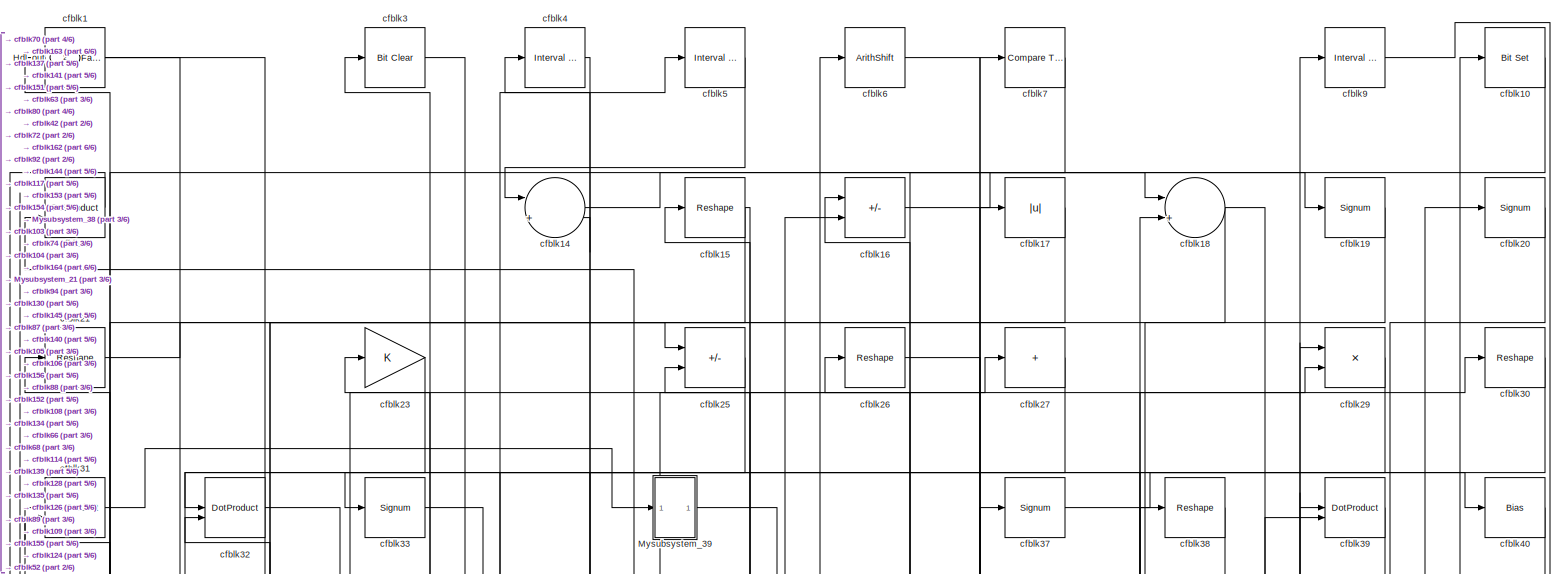
[diagram: root canvas - part 1/6, full width, top band]
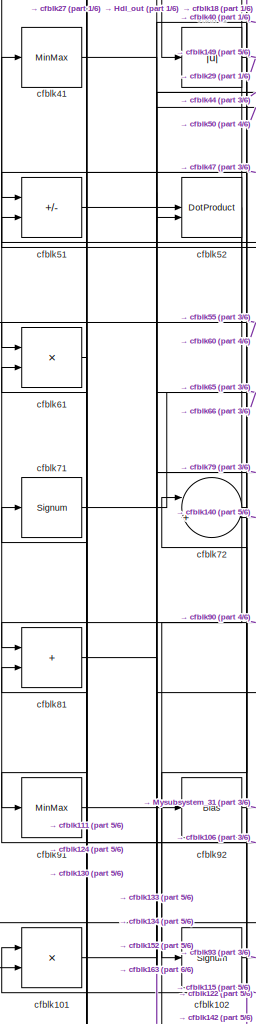
[diagram: root canvas - part 2/6, middle left region]
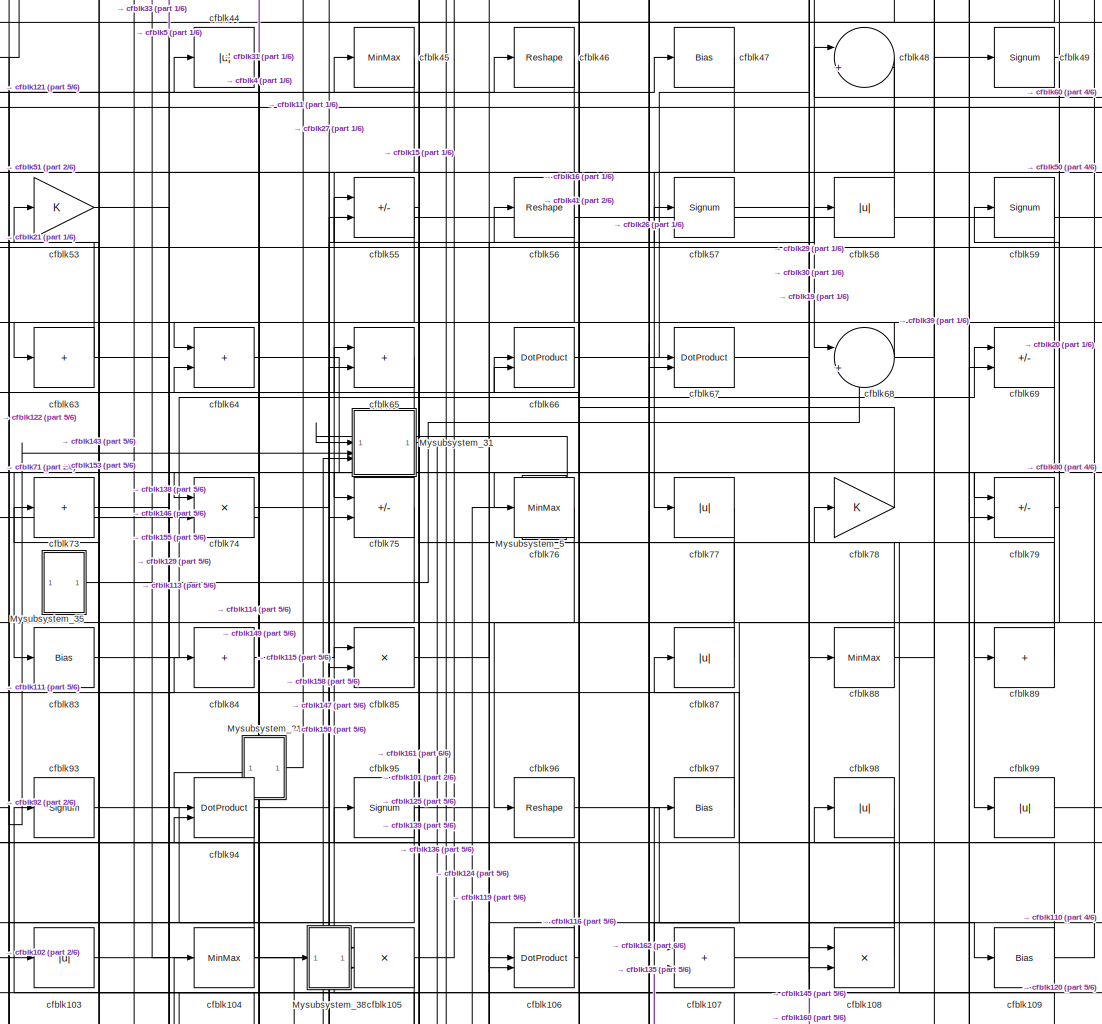
[diagram: root canvas - part 3/6, central region]
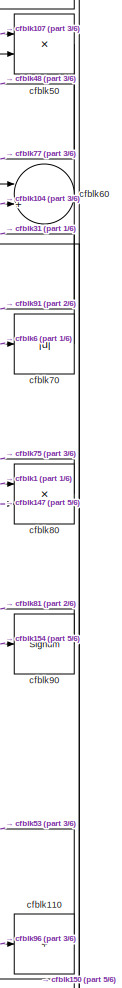
[diagram: root canvas - part 4/6, middle right region]
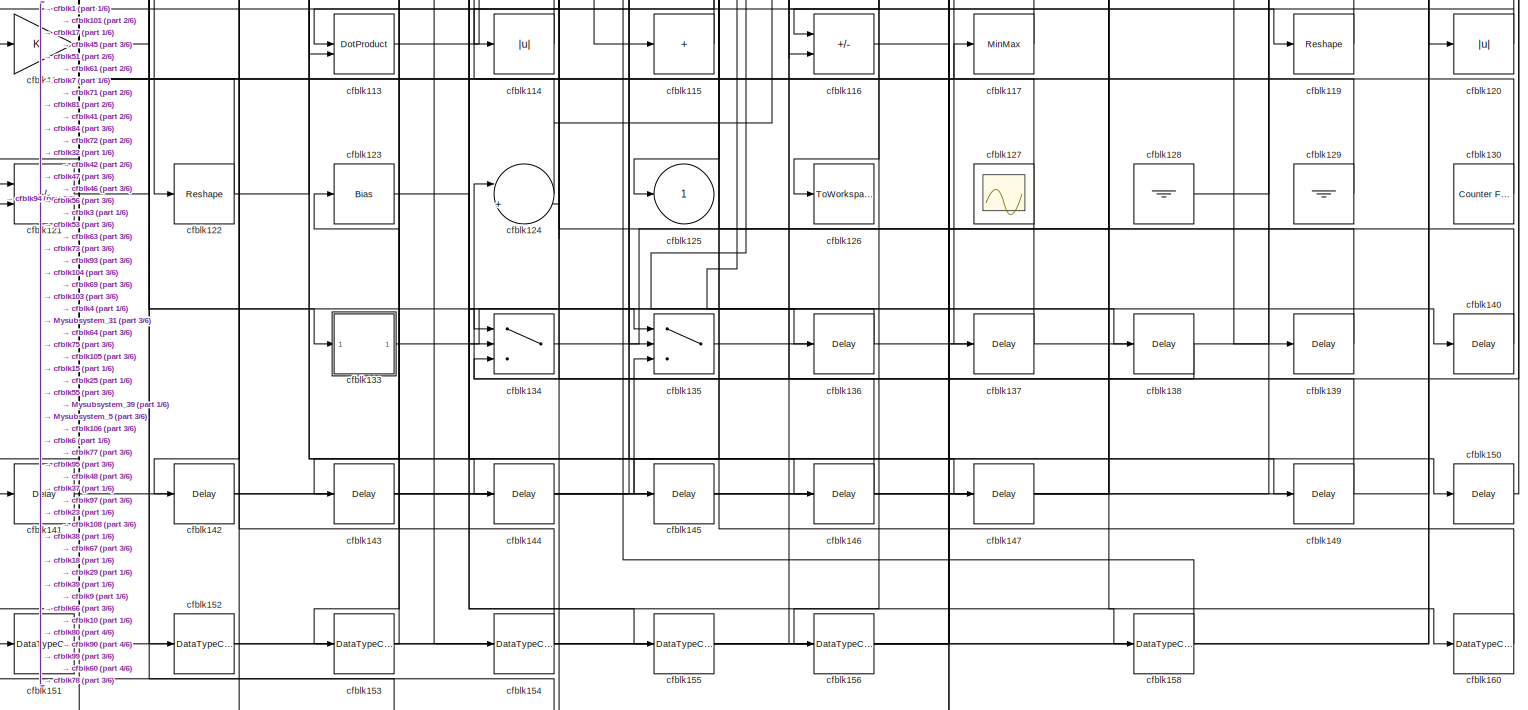
[diagram: root canvas - part 5/6, full width, bottom band]
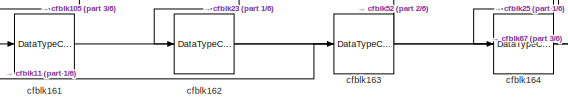
[diagram: root canvas - part 6/6, bottom left region]
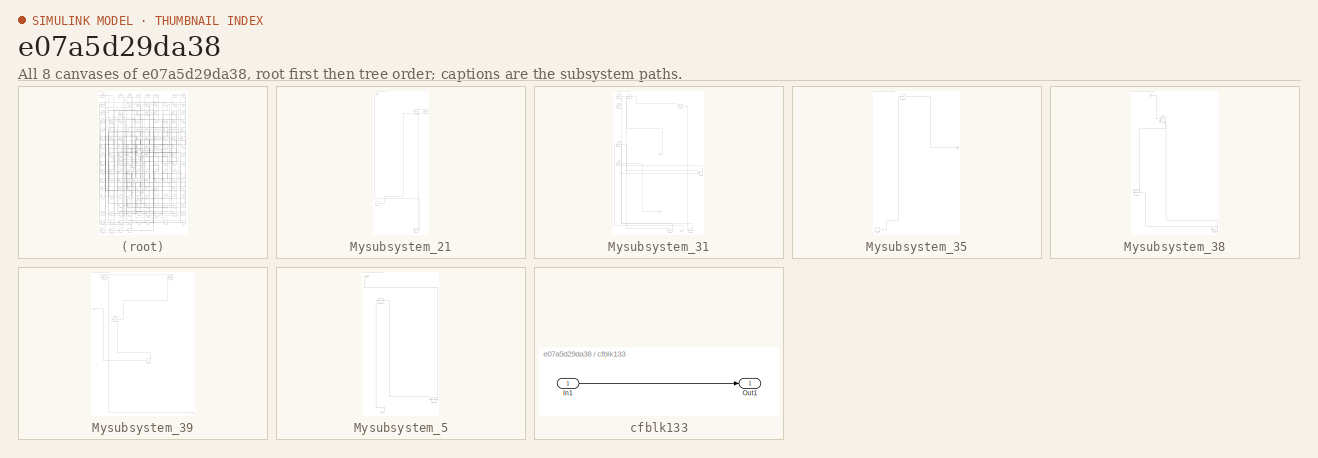
[diagram: thumbnail index - all 8 canvases of the model, root first then tree order]
MODEL slx_e07a5d29da38
KIND model
CONFIG AbsTol = auto
CONFIG EnableMultiTasking = off
CONFIG FixedStep = auto
CONFIG MaxStep = auto
CONFIG MinStep = auto
CONFIG RelTol = 1e-3
CONFIG SampleTimeConstraint = Unconstrained
CONFIG SolverName = VariableStepAuto
CONFIG StartTime = 0.0
CONFIG StopTime = 10.0
BLOCK [Outport] Hdl_out
  OutDataTypeStr = uint8
  Port = 2
BLOCK [SubSystem] Mysubsystem_21
  RTWFcnName = Mysubsystem_21
  RTWFcnNameOpts = User specified
  RTWFileNameOpts = Use function name
  RTWSystemCode = Reusable function
  TreatAsAtomicUnit = on
BLOCK [Outport] Mysubsystem_21/Out1
BLOCK [Ground] Mysubsystem_21/cfblk131
BLOCK [DataTypeConversion] Mysubsystem_21/cfblk165
  OutDataTypeStr = uint8
  RndMeth = Floor
  SaturateOnIntegerOverflow = off
BLOCK [Bias] Mysubsystem_21/cfblk35
  Bias = 0.0
  SaturateOnIntegerOverflow = off
BLOCK [MinMax] Mysubsystem_21/cfblk36
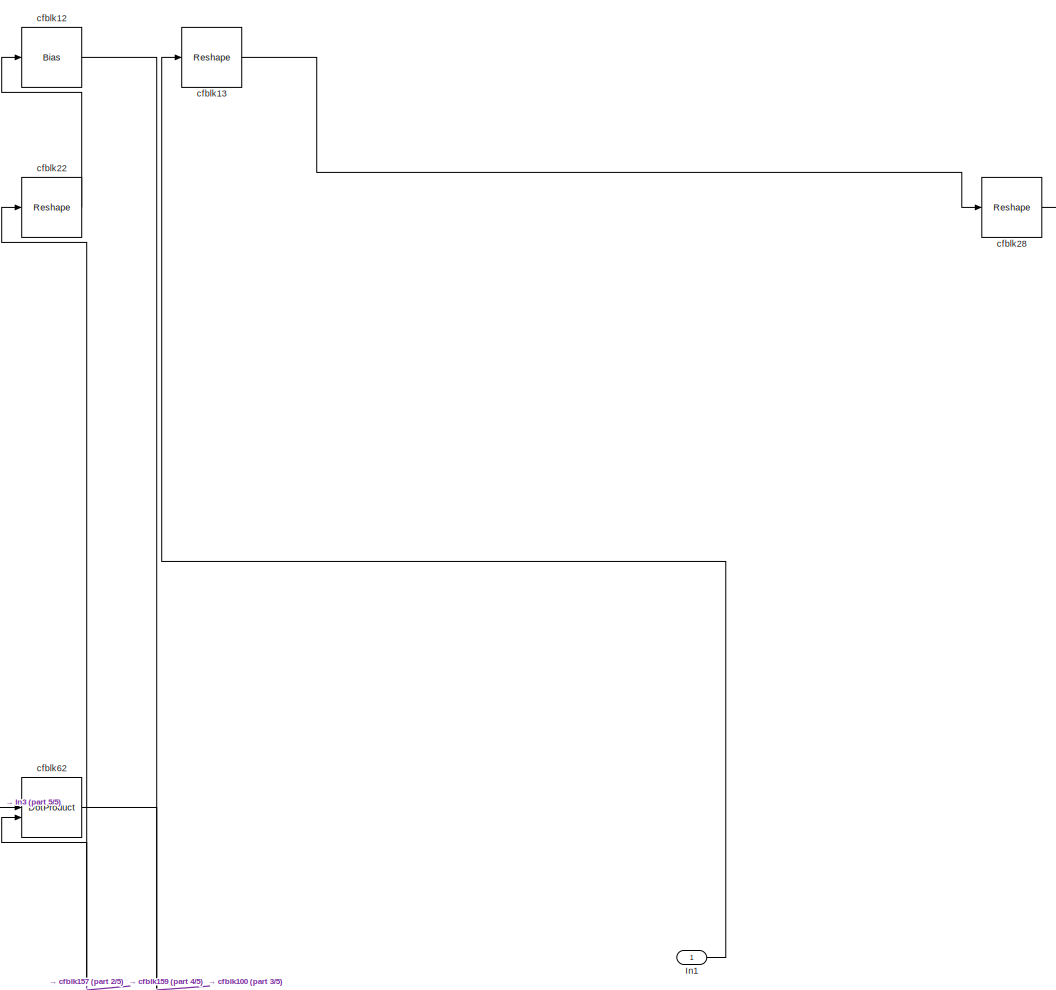
[diagram: Mysubsystem_31 - part 1/5, full width, top band]
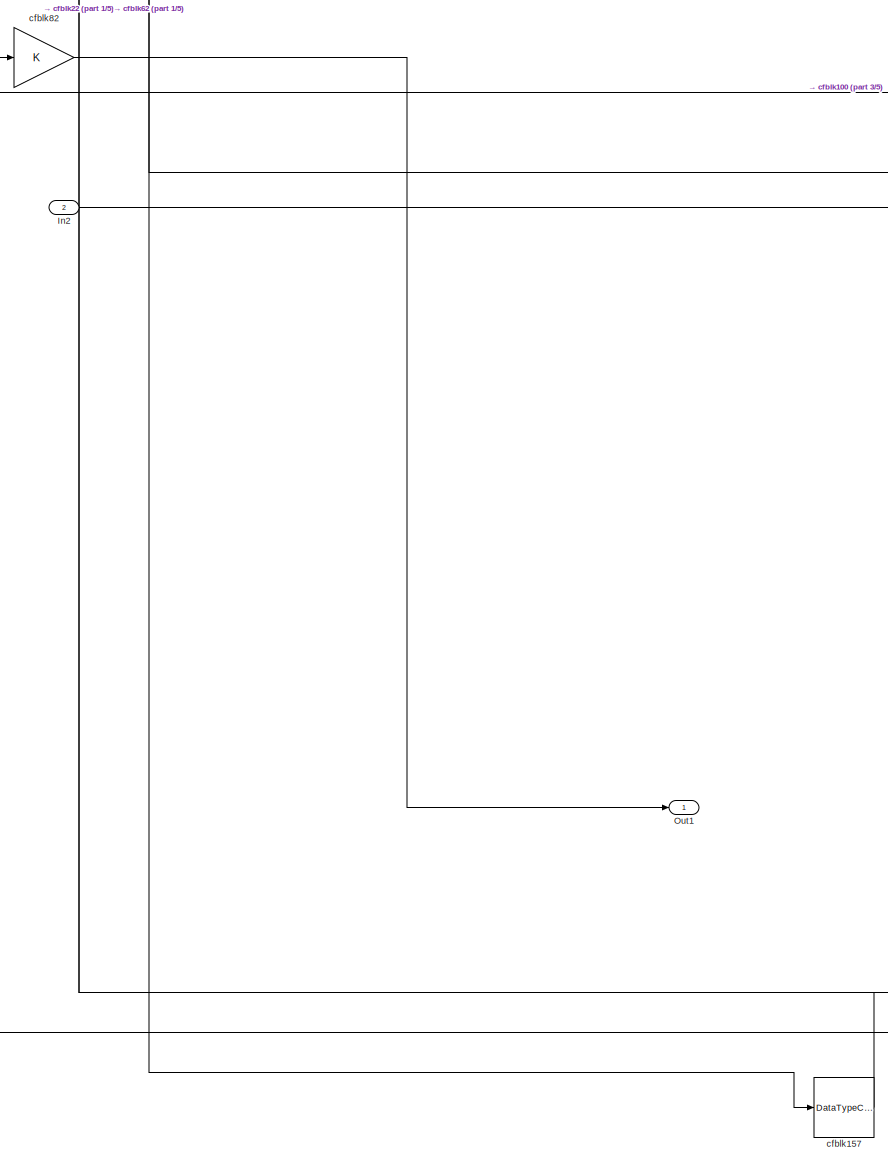
[diagram: Mysubsystem_31 - part 2/5, bottom center region]
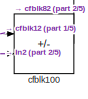
[diagram: Mysubsystem_31 - part 3/5, middle right region]
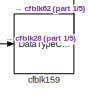
[diagram: Mysubsystem_31 - part 4/5, bottom right region]
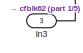
[diagram: Mysubsystem_31 - part 5/5, bottom right region]
BLOCK [SubSystem] Mysubsystem_31
  RTWFcnName = Mysubsystem_31
  RTWFcnNameOpts = User specified
  RTWFileNameOpts = Use function name
  RTWSystemCode = Reusable function
  TreatAsAtomicUnit = on
BLOCK [Inport] Mysubsystem_31/In1
BLOCK [Inport] Mysubsystem_31/In2
  Port = 2
BLOCK [Inport] Mysubsystem_31/In3
  Port = 3
BLOCK [Outport] Mysubsystem_31/Out1
BLOCK [Sum] Mysubsystem_31/cfblk100
  IconShape = rectangular
  Inputs = +-
BLOCK [Bias] Mysubsystem_31/cfblk12
  Bias = 0.0
  SaturateOnIntegerOverflow = off
BLOCK [Reshape] Mysubsystem_31/cfblk13
BLOCK [DataTypeConversion] Mysubsystem_31/cfblk157
  OutDataTypeStr = uint8
  RndMeth = Floor
  SaturateOnIntegerOverflow = off
BLOCK [DataTypeConversion] Mysubsystem_31/cfblk159
  OutDataTypeStr = uint8
  RndMeth = Floor
  SaturateOnIntegerOverflow = off
BLOCK [Reshape] Mysubsystem_31/cfblk22
BLOCK [Reshape] Mysubsystem_31/cfblk28
BLOCK [DotProduct] Mysubsystem_31/cfblk62
  OutDataTypeStr = Inherit: Inherit via internal rule
BLOCK [Gain] Mysubsystem_31/cfblk82
BLOCK [SubSystem] Mysubsystem_35
  RTWFcnName = Mysubsystem_35
  RTWFcnNameOpts = User specified
  RTWFileNameOpts = Use function name
  RTWSystemCode = Reusable function
  TreatAsAtomicUnit = on
BLOCK [Outport] Mysubsystem_35/Out1
BLOCK [Constant] Mysubsystem_35/cfblk132
  SampleTime = -1
BLOCK [Bias] Mysubsystem_35/cfblk24
  Bias = 0.0
  SaturateOnIntegerOverflow = off
BLOCK [SubSystem] Mysubsystem_38
  RTWFcnName = Mysubsystem_38
  RTWFcnNameOpts = User specified
  RTWFileNameOpts = Use function name
  RTWSystemCode = Reusable function
  TreatAsAtomicUnit = on
BLOCK [Inport] Mysubsystem_38/In1
BLOCK [Reshape] Mysubsystem_38/cfblk112
BLOCK [Delay] Mysubsystem_38/cfblk148
  InputPortMap = u0
  SampleTime = 1
BLOCK [Sum] Mysubsystem_38/cfblk54
  IconShape = rectangular
  Inputs = +-
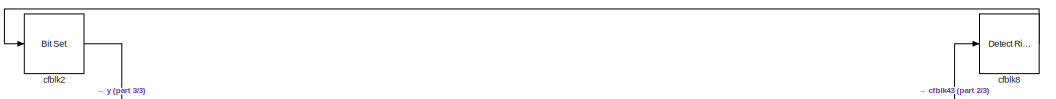
[diagram: Mysubsystem_39 - part 1/3, top center region]
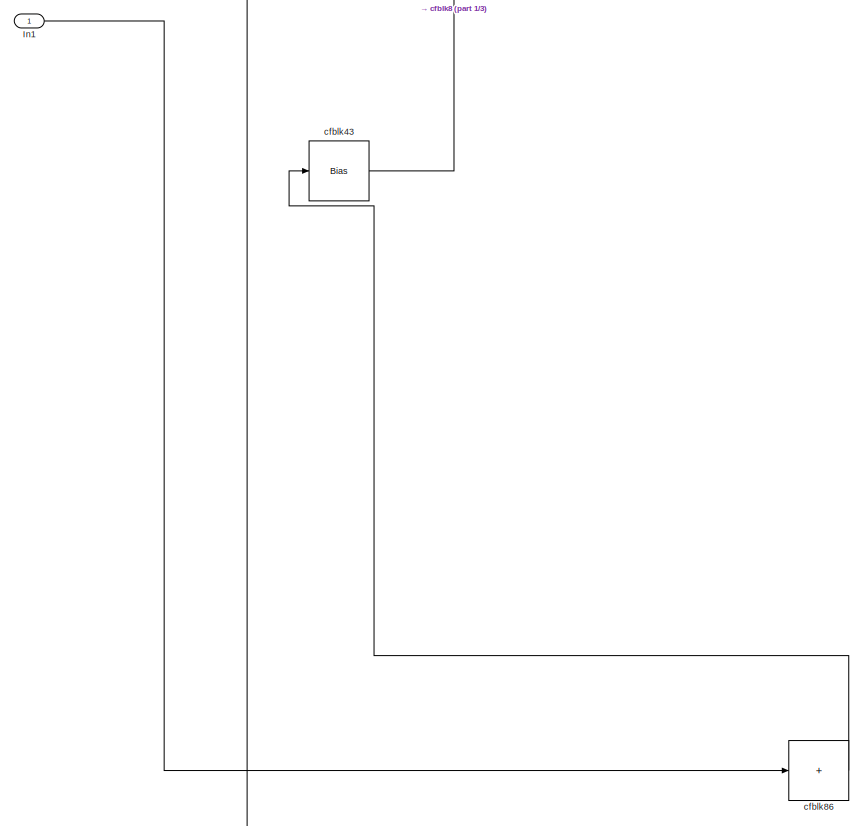
[diagram: Mysubsystem_39 - part 2/3, middle left region]
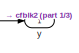
[diagram: Mysubsystem_39 - part 3/3, bottom right region]
BLOCK [SubSystem] Mysubsystem_39
  RTWFcnName = Mysubsystem_39
  RTWFcnNameOpts = User specified
  RTWFileNameOpts = Use function name
  RTWSystemCode = Reusable function
  TreatAsAtomicUnit = on
BLOCK [Inport] Mysubsystem_39/In1
BLOCK [Reference] Mysubsystem_39/cfblk2  REF=simulink/Logic and Bit
Operations/Bit Set
  LibrarySourceBlock = hdlsllib/Logic and Bit\nOperations/Bit Set
  SourceBlock = simulink/Logic and Bit\nOperations/Bit Set
  SourceType = Bit Set
BLOCK [Bias] Mysubsystem_39/cfblk43
  Bias = 0.0
  SaturateOnIntegerOverflow = off
BLOCK [Reference] Mysubsystem_39/cfblk8  REF=hdlsllib/Logic and Bit
Operations/Detect Rise
Nonnegative
  SourceBlock = hdlsllib/Logic and Bit\nOperations/Detect Rise\nNonnegative
  SourceType = Detect Rise Nonnegative
BLOCK [Sum] Mysubsystem_39/cfblk86
  IconShape = rectangular
  Inputs = +
BLOCK [Outport] Mysubsystem_39/y
BLOCK [SubSystem] Mysubsystem_5
  RTWFcnName = Mysubsystem_5
  RTWFcnNameOpts = User specified
  RTWFileNameOpts = Use function name
  RTWSystemCode = Reusable function
  TreatAsAtomicUnit = on
BLOCK [Inport] Mysubsystem_5/In1
BLOCK [Outport] Mysubsystem_5/Out1
BLOCK [Reshape] Mysubsystem_5/cfblk118
BLOCK [Reshape] Mysubsystem_5/cfblk34
BLOCK [Reference] cfblk1  REF=hdlsllib/Logic and Bit
Operations/Detect Fall
Negative
  SourceBlock = hdlsllib/Logic and Bit\nOperations/Detect Fall\nNegative
  SourceType = Detect Fall Negative
BLOCK [Reference] cfblk10  REF=simulink/Logic and Bit
Operations/Bit Set
  LibrarySourceBlock = hdlsllib/Logic and Bit\nOperations/Bit Set
  SourceBlock = simulink/Logic and Bit\nOperations/Bit Set
  SourceType = Bit Set
BLOCK [Product] cfblk101
  Inputs = */
  OutDataTypeStr = uint8
  RndMeth = Zero
  SaturateOnIntegerOverflow = on
BLOCK [Signum] cfblk102
BLOCK [Abs] cfblk103
  OutDataTypeStr = uint8
  SaturateOnIntegerOverflow = off
BLOCK [MinMax] cfblk104
  OutDataTypeStr = uint8
BLOCK [Product] cfblk105
  Inputs = */
  OutDataTypeStr = uint8
  RndMeth = Zero
  SaturateOnIntegerOverflow = on
BLOCK [DotProduct] cfblk106
  OutDataTypeStr = uint8
BLOCK [Sum] cfblk107
  IconShape = rectangular
  OutDataTypeStr = uint8
BLOCK [Product] cfblk108
  Inputs = */
  OutDataTypeStr = uint8
  RndMeth = Zero
  SaturateOnIntegerOverflow = on
BLOCK [Bias] cfblk109
  Bias = 0.0
  SaturateOnIntegerOverflow = off
BLOCK [DotProduct] cfblk11
  OutDataTypeStr = uint8
BLOCK [Sum] cfblk110
  IconShape = rectangular
  Inputs = +
  OutDataTypeStr = uint8
BLOCK [Gain] cfblk111
  OutDataTypeStr = uint8
BLOCK [DotProduct] cfblk113
  OutDataTypeStr = uint8
BLOCK [Abs] cfblk114
  OutDataTypeStr = uint8
  SaturateOnIntegerOverflow = off
BLOCK [Sum] cfblk115
  IconShape = rectangular
  Inputs = +
  OutDataTypeStr = uint8
BLOCK [Sum] cfblk116
  IconShape = rectangular
  Inputs = +-
  OutDataTypeStr = uint8
BLOCK [MinMax] cfblk117
  OutDataTypeStr = uint8
BLOCK [Reshape] cfblk119
BLOCK [Abs] cfblk120
  OutDataTypeStr = uint8
  SaturateOnIntegerOverflow = off
BLOCK [Sum] cfblk121
  IconShape = rectangular
  Inputs = +-
  OutDataTypeStr = uint8
BLOCK [Reshape] cfblk122
BLOCK [Bias] cfblk123
  Bias = 0.0
  SaturateOnIntegerOverflow = off
BLOCK [Sum] cfblk124
  Inputs = |++
  OutDataTypeStr = uint8
BLOCK [Outport] cfblk125
  OutDataTypeStr = uint8
  VectorParamsAs1DForOutWhenUnconnected = off
BLOCK [ToWorkspace] cfblk126
  MaxDataPoints = inf
  SampleTime = -1
  SaveFormat = Timeseries
  VariableName = simout
BLOCK [Scope] cfblk127
  Floating = on
  NumInputPorts = 1
  ScopeSpecificationString = Simulink.scopes.TimeScopeBlockCfg('CurrentConfiguration', extmgr.ConfigurationSet(extmgr.Configuration('Core','General UI',true,'FigureColor',[0.156862745098039 0.156862745098039 0.156862745098039]),extmgr.Configuration('Core','Source UI',true),extmgr.Configuration('Sources','WiredSimulink',true,'DataLoggingVariableName','ScopeData1','DataLoggingSaveFormat','StructureWithTime','DataLoggingLimitDat...<+2713ch>
BLOCK [Ground] cfblk128
BLOCK [Ground] cfblk129
BLOCK [Reference] cfblk130  REF=hdlsllib/Sources/Counter
Free-Running
  SourceBlock = hdlsllib/Sources/Counter\nFree-Running
  SourceType = Counter Free-Running
BLOCK [SubSystem] cfblk133
  LibrarySourceBlock = hdlsllib/Ports &\nSubsystems/Subsystem
BLOCK [Inport] cfblk133/In1
BLOCK [Outport] cfblk133/Out1
BLOCK [Switch] cfblk134
  InputSameDT = off
  OutDataTypeStr = uint8
  SaturateOnIntegerOverflow = off
BLOCK [Switch] cfblk135
  InputSameDT = off
  OutDataTypeStr = uint8
  SaturateOnIntegerOverflow = off
BLOCK [Delay] cfblk136
  InputPortMap = u0
  SampleTime = 1
BLOCK [Delay] cfblk137
  InputPortMap = u0
  SampleTime = 1
BLOCK [Delay] cfblk138
  InputPortMap = u0
  SampleTime = 1
BLOCK [Delay] cfblk139
  InputPortMap = u0
  SampleTime = 1
BLOCK [Sum] cfblk14
  Inputs = |++
  OutDataTypeStr = uint8
BLOCK [Delay] cfblk140
  InputPortMap = u0
  SampleTime = 1
BLOCK [Delay] cfblk141
  InputPortMap = u0
  SampleTime = 1
BLOCK [Delay] cfblk142
  InputPortMap = u0
  SampleTime = 1
BLOCK [Delay] cfblk143
  InputPortMap = u0
  SampleTime = 1
BLOCK [Delay] cfblk144
  InputPortMap = u0
  SampleTime = 1
BLOCK [Delay] cfblk145
  InputPortMap = u0
  SampleTime = 1
BLOCK [Delay] cfblk146
  InputPortMap = u0
  SampleTime = 1
BLOCK [Delay] cfblk147
  InputPortMap = u0
  SampleTime = 1
BLOCK [Delay] cfblk149
  InputPortMap = u0
  SampleTime = 1
BLOCK [Reshape] cfblk15
BLOCK [Delay] cfblk150
  InputPortMap = u0
  SampleTime = 1
BLOCK [DataTypeConversion] cfblk151
  OutDataTypeStr = uint8
  RndMeth = Floor
  SaturateOnIntegerOverflow = off
BLOCK [DataTypeConversion] cfblk152
  OutDataTypeStr = uint8
  RndMeth = Floor
  SaturateOnIntegerOverflow = off
BLOCK [DataTypeConversion] cfblk153
  OutDataTypeStr = uint8
  RndMeth = Floor
  SaturateOnIntegerOverflow = off
BLOCK [DataTypeConversion] cfblk154
  OutDataTypeStr = uint8
  RndMeth = Floor
  SaturateOnIntegerOverflow = off
BLOCK [DataTypeConversion] cfblk155
  OutDataTypeStr = uint8
  RndMeth = Floor
  SaturateOnIntegerOverflow = off
BLOCK [DataTypeConversion] cfblk156
  OutDataTypeStr = uint8
  RndMeth = Floor
  SaturateOnIntegerOverflow = off
BLOCK [DataTypeConversion] cfblk158
  OutDataTypeStr = uint8
  RndMeth = Floor
  SaturateOnIntegerOverflow = off
BLOCK [Sum] cfblk16
  IconShape = rectangular
  Inputs = +-
  OutDataTypeStr = uint8
BLOCK [DataTypeConversion] cfblk160
  OutDataTypeStr = uint8
  RndMeth = Floor
  SaturateOnIntegerOverflow = off
BLOCK [DataTypeConversion] cfblk161
  OutDataTypeStr = uint8
  RndMeth = Floor
  SaturateOnIntegerOverflow = off
BLOCK [DataTypeConversion] cfblk162
  OutDataTypeStr = uint8
  RndMeth = Floor
  SaturateOnIntegerOverflow = off
BLOCK [DataTypeConversion] cfblk163
  OutDataTypeStr = uint8
  RndMeth = Floor
  SaturateOnIntegerOverflow = off
BLOCK [DataTypeConversion] cfblk164
  OutDataTypeStr = uint8
  RndMeth = Floor
  SaturateOnIntegerOverflow = off
BLOCK [Abs] cfblk17
  OutDataTypeStr = uint8
  SaturateOnIntegerOverflow = off
BLOCK [Sum] cfblk18
  Inputs = |++
  OutDataTypeStr = uint8
BLOCK [Signum] cfblk19
BLOCK [Signum] cfblk20
BLOCK [Reshape] cfblk21
BLOCK [Gain] cfblk23
  OutDataTypeStr = uint8
BLOCK [Sum] cfblk25
  IconShape = rectangular
  Inputs = +-
  OutDataTypeStr = uint8
BLOCK [Reshape] cfblk26
BLOCK [Sum] cfblk27
  IconShape = rectangular
  Inputs = +
  OutDataTypeStr = uint8
BLOCK [Product] cfblk29
  Inputs = */
  OutDataTypeStr = uint8
  RndMeth = Zero
  SaturateOnIntegerOverflow = on
BLOCK [Reference] cfblk3  REF=simulink/Logic and Bit
Operations/Bit Clear
  LibrarySourceBlock = hdlsllib/Logic and Bit\nOperations/Bit Clear
  SourceBlock = simulink/Logic and Bit\nOperations/Bit Clear
  SourceType = Bit Clear
BLOCK [Reshape] cfblk30
BLOCK [DotProduct] cfblk31
  OutDataTypeStr = uint8
BLOCK [DotProduct] cfblk32
  OutDataTypeStr = uint8
BLOCK [Signum] cfblk33
BLOCK [Signum] cfblk37
BLOCK [Reshape] cfblk38
BLOCK [DotProduct] cfblk39
  OutDataTypeStr = uint8
BLOCK [Reference] cfblk4  REF=hdlsllib/Logic and Bit
Operations/Interval Test
  SourceBlock = hdlsllib/Logic and Bit\nOperations/Interval Test
  SourceType = Interval Test
BLOCK [Bias] cfblk40
  Bias = 0.0
  SaturateOnIntegerOverflow = off
BLOCK [MinMax] cfblk41
  OutDataTypeStr = uint8
BLOCK [Abs] cfblk42
  OutDataTypeStr = uint8
  SaturateOnIntegerOverflow = off
BLOCK [Abs] cfblk44
  OutDataTypeStr = uint8
  SaturateOnIntegerOverflow = off
BLOCK [MinMax] cfblk45
  OutDataTypeStr = uint8
BLOCK [Reshape] cfblk46
BLOCK [Bias] cfblk47
  Bias = 0.0
  SaturateOnIntegerOverflow = off
BLOCK [Sum] cfblk48
  Inputs = |++
  OutDataTypeStr = uint8
BLOCK [Signum] cfblk49
BLOCK [Reference] cfblk5  REF=hdlsllib/Logic and Bit
Operations/Interval Test
  SourceBlock = hdlsllib/Logic and Bit\nOperations/Interval Test
  SourceType = Interval Test
BLOCK [Product] cfblk50
  Inputs = */
  OutDataTypeStr = uint8
  RndMeth = Zero
  SaturateOnIntegerOverflow = on
BLOCK [Sum] cfblk51
  IconShape = rectangular
  Inputs = +-
  OutDataTypeStr = uint8
BLOCK [DotProduct] cfblk52
  OutDataTypeStr = uint8
BLOCK [Gain] cfblk53
  OutDataTypeStr = uint8
BLOCK [Sum] cfblk55
  IconShape = rectangular
  Inputs = +-
  OutDataTypeStr = uint8
BLOCK [Reshape] cfblk56
BLOCK [Signum] cfblk57
BLOCK [Abs] cfblk58
  OutDataTypeStr = uint8
  SaturateOnIntegerOverflow = off
BLOCK [Signum] cfblk59
BLOCK [ArithShift] cfblk6
  BitShiftNumber = 8
  InputPortMap = u0
BLOCK [Sum] cfblk60
  Inputs = |++
  OutDataTypeStr = uint8
BLOCK [Product] cfblk61
  Inputs = */
  OutDataTypeStr = uint8
  RndMeth = Zero
  SaturateOnIntegerOverflow = on
BLOCK [Sum] cfblk63
  IconShape = rectangular
  Inputs = +
  OutDataTypeStr = uint8
BLOCK [Sum] cfblk64
  IconShape = rectangular
  OutDataTypeStr = uint8
BLOCK [Sum] cfblk65
  IconShape = rectangular
  OutDataTypeStr = uint8
BLOCK [DotProduct] cfblk66
  OutDataTypeStr = uint8
BLOCK [DotProduct] cfblk67
  OutDataTypeStr = uint8
BLOCK [Sum] cfblk68
  Inputs = |++
  OutDataTypeStr = uint8
BLOCK [Sum] cfblk69
  IconShape = rectangular
  Inputs = +-
  OutDataTypeStr = uint8
BLOCK [Reference] cfblk7  REF=hdlsllib/Logic and Bit
Operations/Compare
To Constant
  SourceBlock = hdlsllib/Logic and Bit\nOperations/Compare\nTo Constant
  SourceType = Compare To Constant
BLOCK [Abs] cfblk70
  OutDataTypeStr = uint8
  SaturateOnIntegerOverflow = off
BLOCK [Signum] cfblk71
BLOCK [Sum] cfblk72
  Inputs = |++
  OutDataTypeStr = uint8
BLOCK [Sum] cfblk73
  IconShape = rectangular
  Inputs = +
  OutDataTypeStr = uint8
BLOCK [Product] cfblk74
  Inputs = */
  OutDataTypeStr = uint8
  RndMeth = Zero
  SaturateOnIntegerOverflow = on
BLOCK [Sum] cfblk75
  IconShape = rectangular
  Inputs = +-
  OutDataTypeStr = uint8
BLOCK [MinMax] cfblk76
  OutDataTypeStr = uint8
BLOCK [Abs] cfblk77
  OutDataTypeStr = uint8
  SaturateOnIntegerOverflow = off
BLOCK [Gain] cfblk78
  OutDataTypeStr = uint8
BLOCK [Sum] cfblk79
  IconShape = rectangular
  Inputs = +-
  OutDataTypeStr = uint8
BLOCK [Product] cfblk80
  Inputs = */
  OutDataTypeStr = uint8
  RndMeth = Zero
  SaturateOnIntegerOverflow = on
BLOCK [Sum] cfblk81
  IconShape = rectangular
  OutDataTypeStr = uint8
BLOCK [Bias] cfblk83
  Bias = 0.0
  SaturateOnIntegerOverflow = off
BLOCK [Sum] cfblk84
  IconShape = rectangular
  Inputs = +
  OutDataTypeStr = uint8
BLOCK [Product] cfblk85
  Inputs = */
  OutDataTypeStr = uint8
  RndMeth = Zero
  SaturateOnIntegerOverflow = on
BLOCK [Abs] cfblk87
  OutDataTypeStr = uint8
  SaturateOnIntegerOverflow = off
BLOCK [MinMax] cfblk88
  OutDataTypeStr = uint8
BLOCK [Sum] cfblk89
  IconShape = rectangular
  Inputs = +
  OutDataTypeStr = uint8
BLOCK [Reference] cfblk9  REF=hdlsllib/Logic and Bit
Operations/Interval Test
  SourceBlock = hdlsllib/Logic and Bit\nOperations/Interval Test
  SourceType = Interval Test
BLOCK [Signum] cfblk90
BLOCK [MinMax] cfblk91
  OutDataTypeStr = uint8
BLOCK [Bias] cfblk92
  Bias = 0.0
  SaturateOnIntegerOverflow = off
BLOCK [Signum] cfblk93
BLOCK [DotProduct] cfblk94
  OutDataTypeStr = uint8
BLOCK [Signum] cfblk95
BLOCK [Reshape] cfblk96
BLOCK [Bias] cfblk97
  Bias = 0.0
  SaturateOnIntegerOverflow = off
BLOCK [Abs] cfblk98
  OutDataTypeStr = uint8
  SaturateOnIntegerOverflow = off
BLOCK [Abs] cfblk99
  OutDataTypeStr = uint8
  SaturateOnIntegerOverflow = off
LINE Mysubsystem_21/cfblk131:1 -> Mysubsystem_21/cfblk36:1
LINE Mysubsystem_21/cfblk165:1 -> Mysubsystem_21/Out1:1
LINE Mysubsystem_21/cfblk35:1 -> Mysubsystem_21/cfblk165:1
LINE Mysubsystem_21/cfblk36:1 -> Mysubsystem_21/cfblk35:1
LINE Mysubsystem_21:1 -> cfblk11:2
LINE Mysubsystem_31/In1:1 -> Mysubsystem_31/cfblk13:1
LINE Mysubsystem_31/In2:1 -> Mysubsystem_31/cfblk100:2
LINE Mysubsystem_31/In3:1 -> Mysubsystem_31/cfblk62:1
LINE Mysubsystem_31/cfblk100:1 -> Mysubsystem_31/cfblk82:1
LINE Mysubsystem_31/cfblk12:1 -> Mysubsystem_31/cfblk100:1
LINE Mysubsystem_31/cfblk13:1 -> Mysubsystem_31/cfblk28:1
LINE Mysubsystem_31/cfblk157:1 -> Mysubsystem_31/cfblk22:1
LINE Mysubsystem_31/cfblk159:1 -> Mysubsystem_31/cfblk62:2
LINE Mysubsystem_31/cfblk22:1 -> Mysubsystem_31/cfblk12:1
LINE Mysubsystem_31/cfblk28:1 -> Mysubsystem_31/cfblk159:1
LINE Mysubsystem_31/cfblk62:1 -> Mysubsystem_31/cfblk157:1
LINE Mysubsystem_31/cfblk82:1 -> Mysubsystem_31/Out1:1
LINE Mysubsystem_31:1 -> cfblk136:1
LINE Mysubsystem_35/cfblk132:1 -> Mysubsystem_35/cfblk24:1
LINE Mysubsystem_35/cfblk24:1 -> Mysubsystem_35/Out1:1
LINE Mysubsystem_35:1 -> cfblk68:2
LINE Mysubsystem_38/In1:1 -> Mysubsystem_38/cfblk54:1
LINE Mysubsystem_38/cfblk112:1 -> Mysubsystem_38/cfblk148:1
LINE Mysubsystem_38/cfblk148:1 -> Mysubsystem_38/cfblk54:2
LINE Mysubsystem_38/cfblk54:1 -> Mysubsystem_38/cfblk112:1
LINE Mysubsystem_39/In1:1 -> Mysubsystem_39/cfblk86:1
LINE Mysubsystem_39/cfblk2:1 -> Mysubsystem_39/y:1
LINE Mysubsystem_39/cfblk43:1 -> Mysubsystem_39/cfblk8:1
LINE Mysubsystem_39/cfblk86:1 -> Mysubsystem_39/cfblk43:1
LINE Mysubsystem_39/cfblk8:1 -> Mysubsystem_39/cfblk2:1
LINE Mysubsystem_39:1 -> cfblk140:1
LINE Mysubsystem_5/In1:1 -> Mysubsystem_5/cfblk34:1
LINE Mysubsystem_5/cfblk118:1 -> Mysubsystem_5/Out1:1
LINE Mysubsystem_5/cfblk34:1 -> Mysubsystem_5/cfblk118:1
LINE Mysubsystem_5:1 -> Mysubsystem_31:1
NET cfblk101:1 -> cfblk44:1, cfblk66:2
LINE cfblk102:1 -> cfblk93:1
LINE cfblk103:1 -> cfblk5:1
NET cfblk104:1 -> cfblk115:1, cfblk31:2, cfblk4:1, cfblk60:2
NET cfblk105:1 -> cfblk161:1, cfblk16:2
NET cfblk106:1 -> cfblk16:1, cfblk41:1
LINE cfblk107:1 -> cfblk50:1
LINE cfblk108:1 -> cfblk98:1
NET cfblk109:1 -> cfblk20:1, cfblk87:1
LINE cfblk10:1 -> cfblk156:1
LINE cfblk110:1 -> cfblk53:1
LINE cfblk111:1 -> cfblk84:1
LINE cfblk113:1 -> cfblk69:2
LINE cfblk114:1 -> cfblk103:1
LINE cfblk115:1 -> cfblk61:2
LINE cfblk116:1 -> cfblk137:1
LINE cfblk117:1 -> cfblk23:1
LINE cfblk119:1 -> cfblk66:1
LINE cfblk11:1 -> cfblk163:1
NET cfblk120:1 -> cfblk113:1, cfblk78:1
LINE cfblk121:1 -> cfblk46:1
NET cfblk122:1 -> cfblk47:1, cfblk51:2
LINE cfblk123:1 -> cfblk158:1
NET cfblk124:1 -> Mysubsystem_5:1, cfblk71:1, cfblk81:2
LINE cfblk128:1 -> cfblk9:1
LINE cfblk129:1 -> cfblk104:1
NET cfblk130:1 -> cfblk101:1, cfblk117:1, cfblk25:2
LINE cfblk133/In1:1 -> cfblk133/Out1:1
LINE cfblk133:1 -> cfblk135:1
LINE cfblk134:1 -> cfblk38:1
NET cfblk135:1 -> cfblk39:1, cfblk97:1
LINE cfblk136:1 -> cfblk134:2
LINE cfblk137:1 -> cfblk1:1
LINE cfblk138:1 -> cfblk134:3
LINE cfblk139:1 -> cfblk105:2
LINE cfblk140:1 -> cfblk72:2
LINE cfblk141:1 -> cfblk18:2
LINE cfblk142:1 -> cfblk135:3
LINE cfblk143:1 -> cfblk75:2
LINE cfblk144:1 -> cfblk29:1
LINE cfblk145:1 -> cfblk108:1
LINE cfblk146:1 -> cfblk106:1
LINE cfblk147:1 -> cfblk80:2
LINE cfblk149:1 -> cfblk94:2
LINE cfblk14:1 -> cfblk19:1
LINE cfblk150:1 -> cfblk60:1
NET cfblk151:1 -> cfblk17:1, cfblk6:1
LINE cfblk152:1 -> cfblk7:1
LINE cfblk153:1 -> cfblk3:1
NET cfblk154:1 -> cfblk123:1, cfblk32:2, cfblk90:1
LINE cfblk155:1 -> cfblk10:1
LINE cfblk156:1 -> cfblk37:1
LINE cfblk158:1 -> Mysubsystem_31:3
NET cfblk15:1 -> cfblk145:1, cfblk32:1
NET cfblk160:1 -> cfblk55:2, cfblk95:1
LINE cfblk161:1 -> cfblk67:1
LINE cfblk162:1 -> cfblk67:2
LINE cfblk163:1 -> cfblk52:1
LINE cfblk164:1 -> cfblk11:1
LINE cfblk16:1 -> cfblk18:1
LINE cfblk17:1 -> cfblk141:1
NET cfblk18:1 -> cfblk139:1, cfblk92:1
LINE cfblk19:1 -> cfblk68:1
LINE cfblk1:1 -> cfblk80:1
LINE cfblk20:1 -> cfblk89:1
LINE cfblk21:1 -> cfblk25:1
LINE cfblk23:1 -> cfblk162:1
LINE cfblk25:1 -> cfblk164:1
LINE cfblk26:1 -> cfblk109:1
LINE cfblk27:1 -> cfblk42:1
NET cfblk29:1 -> cfblk108:2, cfblk33:1
LINE cfblk30:1 -> cfblk74:2
LINE cfblk31:1 -> Mysubsystem_39:1
LINE cfblk32:1 -> cfblk144:1
LINE cfblk33:1 -> Mysubsystem_38:1
LINE cfblk37:1 -> cfblk40:1
LINE cfblk38:1 -> cfblk114:1
LINE cfblk39:1 -> cfblk126:1
LINE cfblk3:1 -> cfblk154:1
LINE cfblk40:1 -> cfblk52:2
LINE cfblk41:1 -> cfblk134:1
NET cfblk42:1 -> cfblk149:1, cfblk29:2
LINE cfblk44:1 -> cfblk74:1
LINE cfblk45:1 -> cfblk121:1
NET cfblk46:1 -> cfblk105:1, cfblk143:1, cfblk85:2
LINE cfblk47:1 -> cfblk51:1
LINE cfblk48:1 -> cfblk116:1
LINE cfblk49:1 -> cfblk79:1
NET cfblk4:1 -> cfblk124:2, cfblk14:2
LINE cfblk50:1 -> cfblk77:1
LINE cfblk51:1 -> cfblk152:1
LINE cfblk52:1 -> cfblk61:1
LINE cfblk53:1 -> cfblk146:1
NET cfblk55:1 -> cfblk101:2, cfblk125:1
LINE cfblk56:1 -> cfblk153:1
LINE cfblk57:1 -> cfblk88:1
LINE cfblk58:1 -> cfblk48:2
LINE cfblk59:1 -> cfblk76:1
LINE cfblk5:1 -> cfblk14:1
NET cfblk60:1 -> cfblk48:1, cfblk91:1
LINE cfblk61:1 -> cfblk111:1
NET cfblk63:1 -> cfblk138:1, cfblk21:1
NET cfblk64:1 -> cfblk147:1, cfblk57:1, cfblk99:1
LINE cfblk65:1 -> cfblk83:1
LINE cfblk66:1 -> cfblk30:1
LINE cfblk67:1 -> cfblk160:1
NET cfblk68:1 -> cfblk39:2, cfblk64:1
NET cfblk69:1 -> cfblk107:2, cfblk63:1
LINE cfblk6:1 -> cfblk70:1
LINE cfblk70:1 -> cfblk31:1
NET cfblk71:1 -> cfblk65:1, cfblk79:2
NET cfblk72:1 -> Hdl_out:1, cfblk122:1, cfblk142:1
LINE cfblk73:1 -> cfblk155:1
LINE cfblk74:1 -> cfblk65:2
LINE cfblk75:1 -> cfblk94:1
LINE cfblk76:1 -> cfblk96:1
LINE cfblk77:1 -> cfblk116:2
LINE cfblk78:1 -> cfblk56:1
NET cfblk79:1 -> cfblk107:1, cfblk59:1
LINE cfblk7:1 -> cfblk151:1
LINE cfblk80:1 -> cfblk75:1
LINE cfblk81:1 -> cfblk133:1
LINE cfblk83:1 -> cfblk69:1
LINE cfblk84:1 -> cfblk85:1
LINE cfblk85:1 -> cfblk58:1
LINE cfblk87:1 -> cfblk15:1
NET cfblk88:1 -> cfblk26:1, cfblk49:1
LINE cfblk89:1 -> cfblk55:1
LINE cfblk90:1 -> cfblk81:1
NET cfblk91:1 -> cfblk102:1, cfblk50:2
NET cfblk92:1 -> Mysubsystem_31:2, cfblk72:1
NET cfblk93:1 -> cfblk135:2, cfblk150:1
NET cfblk94:1 -> cfblk121:2, cfblk27:1, cfblk64:2
NET cfblk95:1 -> cfblk113:2, cfblk119:1
LINE cfblk96:1 -> cfblk110:1
NET cfblk97:1 -> cfblk45:1, cfblk73:1
LINE cfblk98:1 -> cfblk106:2
LINE cfblk99:1 -> cfblk120:1
LINE cfblk9:1 -> cfblk124:1
note: NET lines group one-source signal fan-out (src -> all destinations, sorted); 1:1 wires keep LINE
